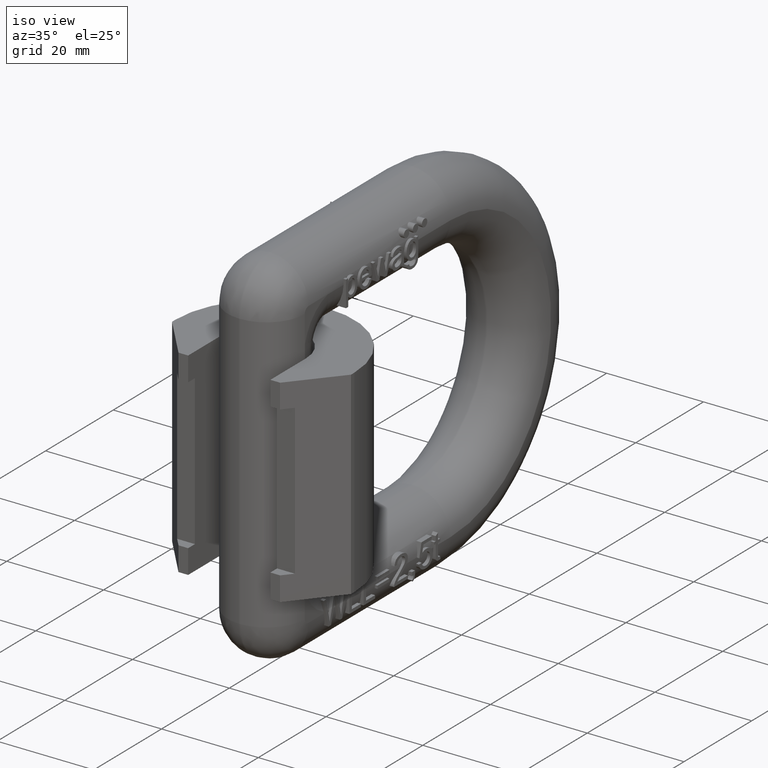
[diagram: clean part render]
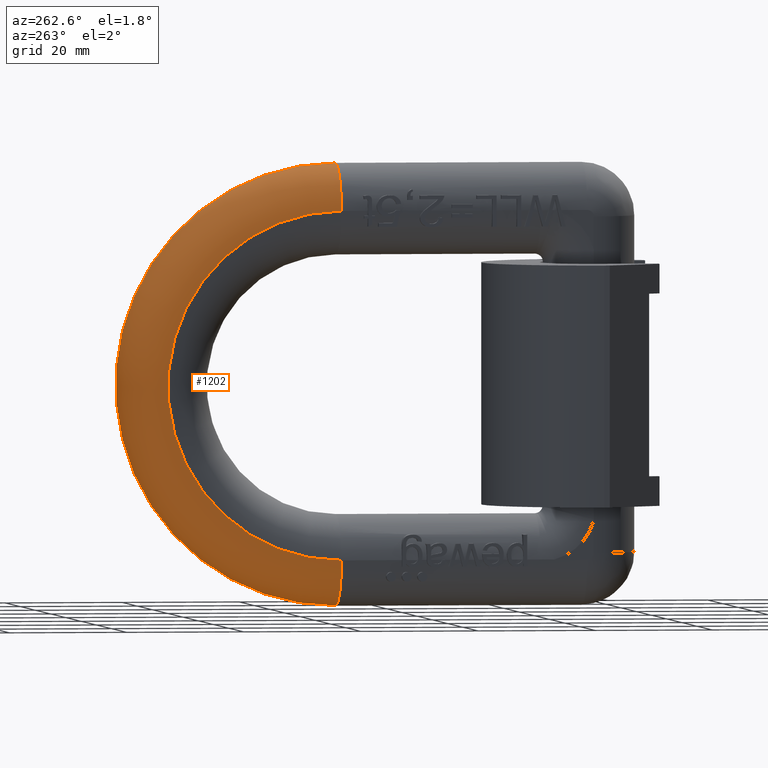
[diagram: tour spotlight — one face highlighted and labeled with its STEP entity id]
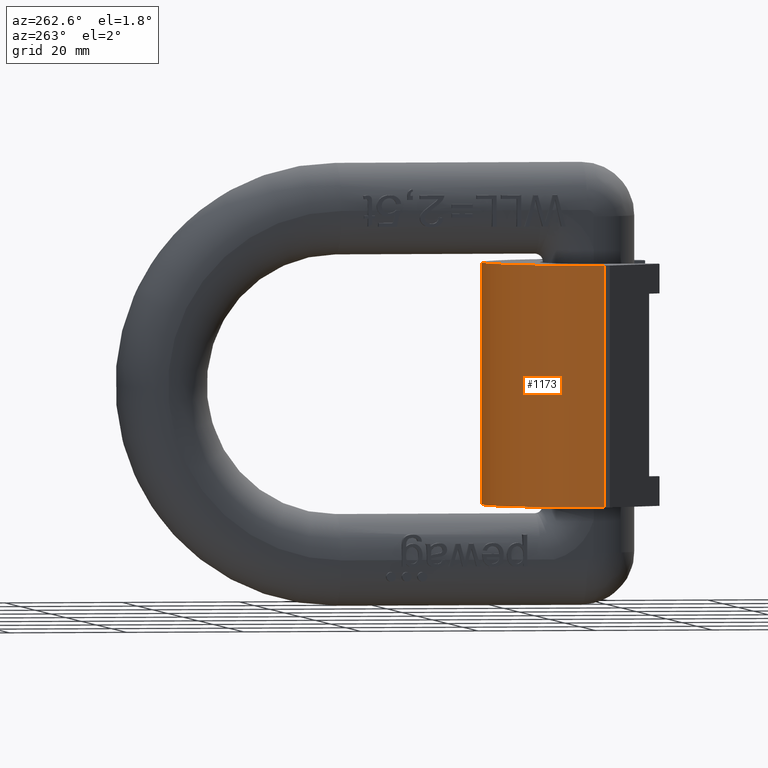
[diagram: tour spotlight — one face highlighted and labeled with its STEP entity id]
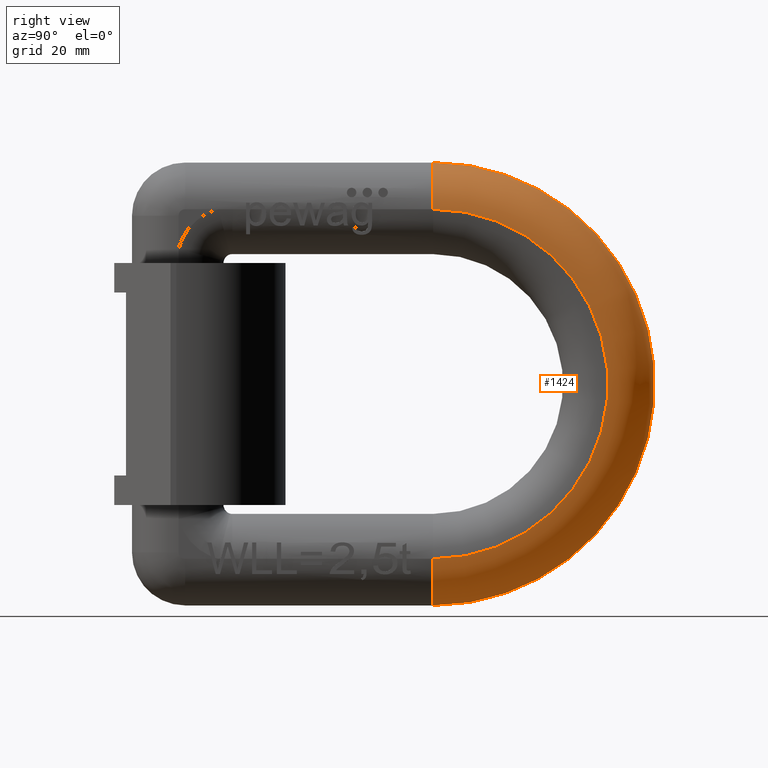
[diagram: tour spotlight — one face highlighted and labeled with its STEP entity id]
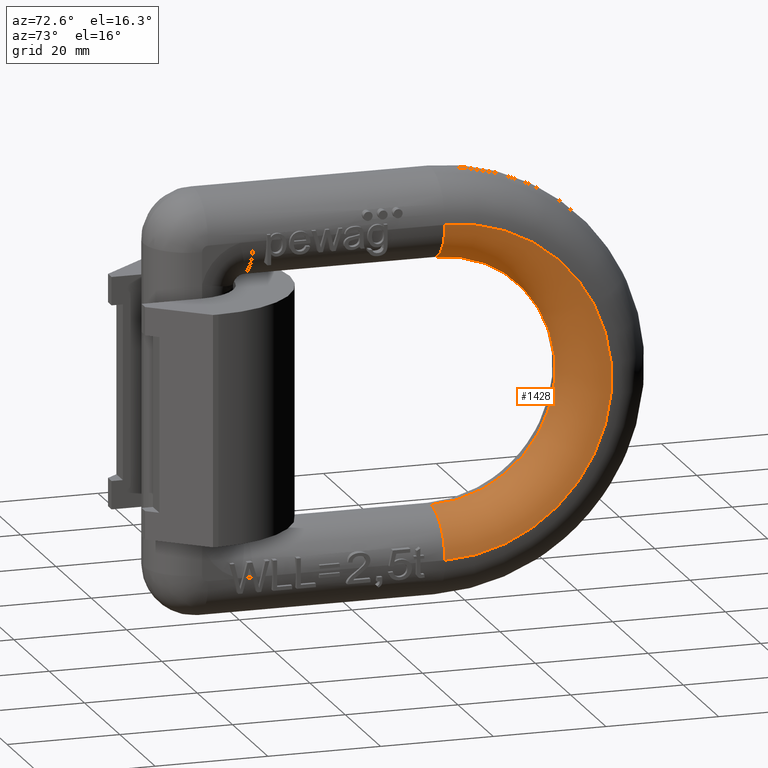
[diagram: tour spotlight — one face highlighted and labeled with its STEP entity id]
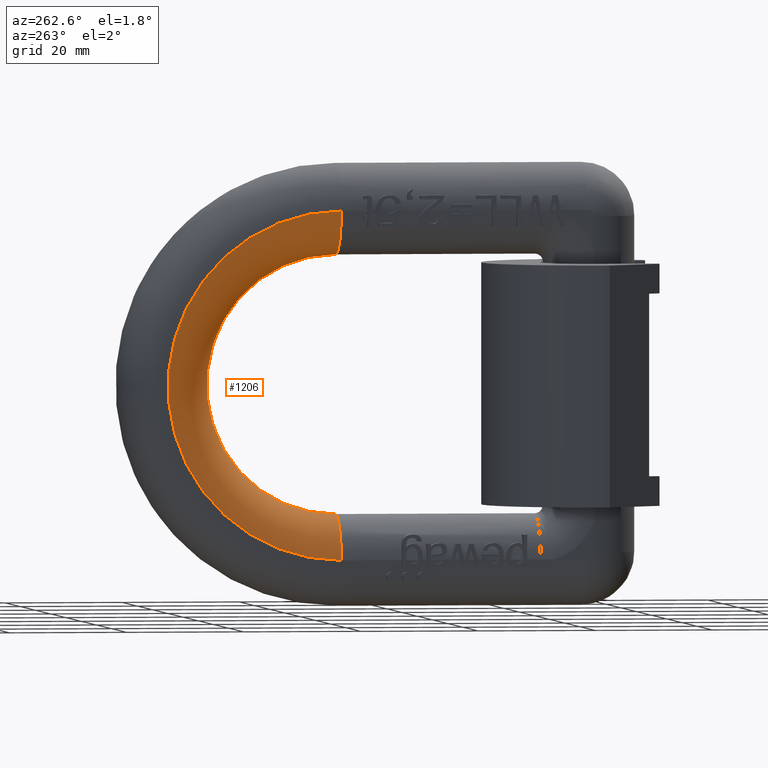
[diagram: tour spotlight — one face highlighted and labeled with its STEP entity id]
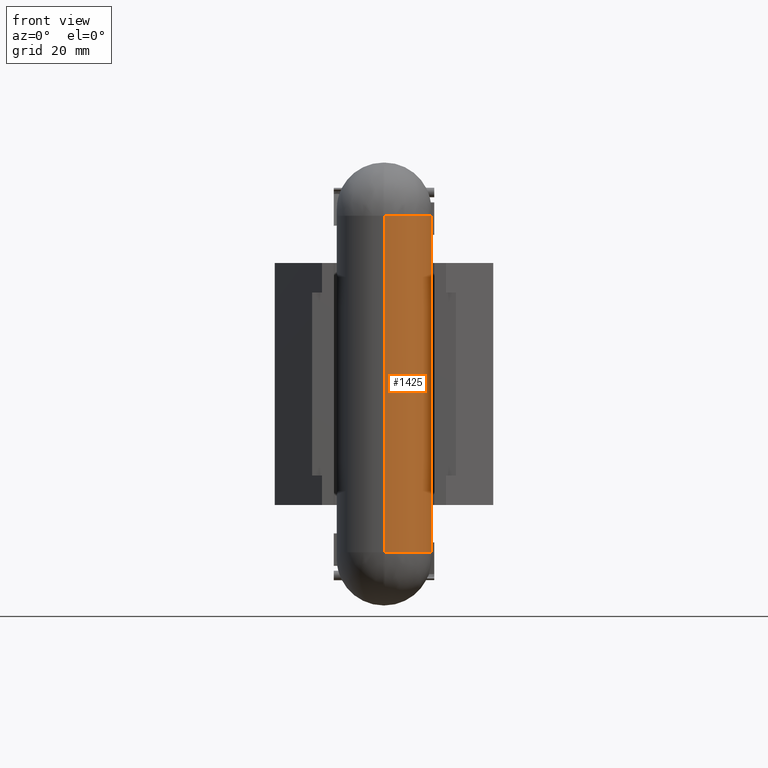
[diagram: tour spotlight — one face highlighted and labeled with its STEP entity id]
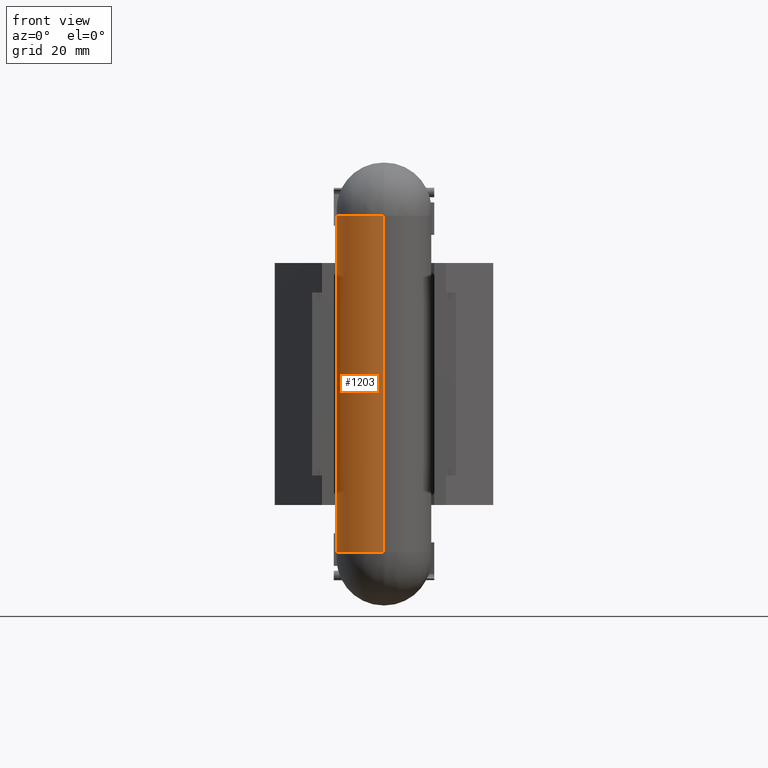
[diagram: tour spotlight — one face highlighted and labeled with its STEP entity id]
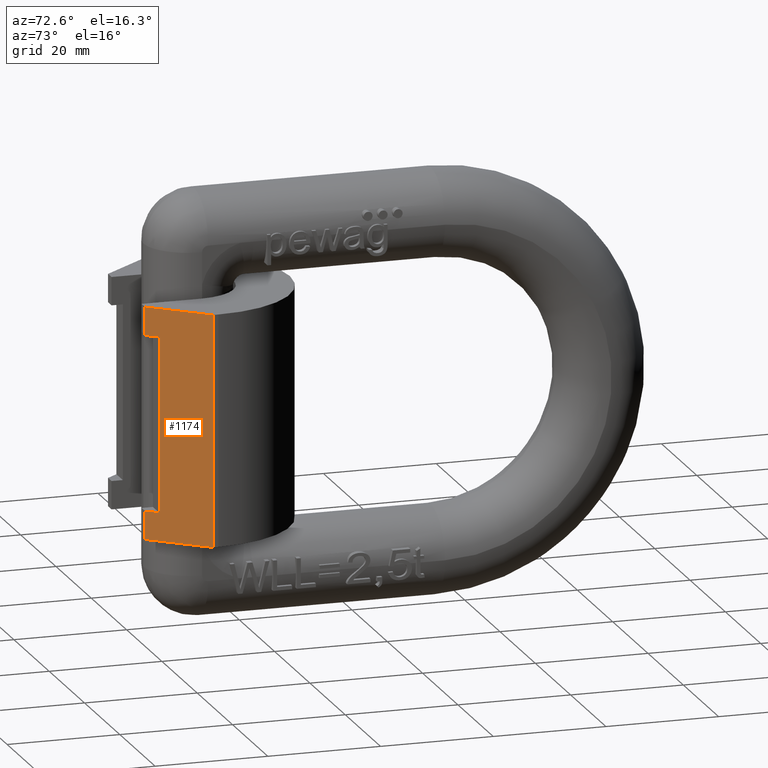
[diagram: tour spotlight — one face highlighted and labeled with its STEP entity id]
A machine part: a face-by-face anatomy tour. The part has 476 B-rep faces; the first image is the clean iso view, then the 8 largest visible faces are spotlighted one at a time (largest first), each with its STEP entity span.

Face 1 — auxiliary view, entity #1202. In plain terms, the highlighted toroidal blend (fillet) surface has major radius 29.6 mm and minor (blend) radius 7.9 mm.
Definition (entity closure, byte-faithful):
#191=TOROIDAL_SURFACE('',#9133,29.6,7.9);
#1202=ADVANCED_FACE('',(#1909),#191,.T.);
#1909=FACE_OUTER_BOUND('',#2369,.T.);
#2369=EDGE_LOOP('',(#3253,#3254,#3255,#3256));
#2833=CIRCLE('',#9074,37.5);
#2845=CIRCLE('',#9100,7.9);
#2855=CIRCLE('',#9131,29.6);
#2856=CIRCLE('',#9132,7.9);
#3253=ORIENTED_EDGE('',*,*,#6609,.T.);
#3254=ORIENTED_EDGE('',*,*,#6680,.F.);
#3255=ORIENTED_EDGE('',*,*,#6681,.F.);
#3256=ORIENTED_EDGE('',*,*,#6540,.F.);
#5641=VERTEX_POINT('',#11391);
#5643=VERTEX_POINT('',#11397);
#5705=VERTEX_POINT('',#11812);
#5761=VERTEX_POINT('',#12436);
#6540=EDGE_CURVE('',#5643,#5641,#2833,.T.);
#6609=EDGE_CURVE('',#5643,#5705,#2845,.T.);
#6680=EDGE_CURVE('',#5761,#5705,#2855,.T.);
#6681=EDGE_CURVE('',#5641,#5761,#2856,.T.);
#9074=AXIS2_PLACEMENT_3D('',#11398,#9670,#9671);
#9100=AXIS2_PLACEMENT_3D('',#11813,#9744,#9745);
#9131=AXIS2_PLACEMENT_3D('',#12435,#9818,#9819);
#9132=AXIS2_PLACEMENT_3D('',#12437,#9820,#9821);
#9133=AXIS2_PLACEMENT_3D('',#12438,#9822,#9823);
#9670=DIRECTION('',(1.,0.,0.));
#9671=DIRECTION('',(0.,0.,1.));
#9744=DIRECTION('',(0.,1.,0.));
#9745=DIRECTION('',(0.,0.,1.));
#9818=DIRECTION('',(-1.,0.,0.));
#9819=DIRECTION('',(0.,0.,1.));
#9820=DIRECTION('',(0.,-1.,0.));
#9821=DIRECTION('',(0.,0.,-1.));
#9822=DIRECTION('',(-1.,0.,0.));
#9823=DIRECTION('',(0.,0.,1.));
#11391=CARTESIAN_POINT('',(-0.0999999999999994,54.,37.5));
#11397=CARTESIAN_POINT('',(-0.0999999999999994,54.,-37.5));
#11398=CARTESIAN_POINT('',(-0.0999999999999994,54.,0.));
#11812=CARTESIAN_POINT('',(-8.,54.,-29.6));
#11813=CARTESIAN_POINT('',(-0.0999999999999994,54.,-29.6));
#12435=CARTESIAN_POINT('',(-8.,54.,0.));
#12436=CARTESIAN_POINT('',(-8.,54.,29.6));
#12437=CARTESIAN_POINT('',(-0.0999999999999994,54.,29.6));
#12438=CARTESIAN_POINT('',(-0.0999999999999994,54.,0.));

Face 2 — auxiliary view, entity #1173. In plain terms, the highlighted cylindrical surface (partial cylindrical patch) has radius 18.5 mm, axis along (0, 0, -1).
Definition (entity closure, byte-faithful):
#1103=CYLINDRICAL_SURFACE('',#9056,18.5);
#1173=ADVANCED_FACE('',(#1881),#1103,.T.);
#1881=FACE_OUTER_BOUND('',#2337,.T.);
#2337=EDGE_LOOP('',(#3030,#3031,#3032,#3033));
#2823=CIRCLE('',#9036,18.5);
#2824=CIRCLE('',#9038,18.5);
#3030=ORIENTED_EDGE('',*,*,#6467,.T.);
#3031=ORIENTED_EDGE('',*,*,#6475,.F.);
#3032=ORIENTED_EDGE('',*,*,#6462,.F.);
#3033=ORIENTED_EDGE('',*,*,#6503,.T.);
#5590=VERTEX_POINT('',#11220);
#5591=VERTEX_POINT('',#11222);
#5595=VERTEX_POINT('',#11231);
#5596=VERTEX_POINT('',#11233);
#6462=EDGE_CURVE('',#5590,#5591,#2823,.T.);
#6467=EDGE_CURVE('',#5596,#5595,#2824,.T.);
#6475=EDGE_CURVE('',#5591,#5595,#7791,.T.);
#6503=EDGE_CURVE('',#5590,#5596,#7819,.T.);
#7791=LINE('',#11247,#8337);
#7819=LINE('',#11301,#8365);
#8337=VECTOR('',#9550,1.);
#8365=VECTOR('',#9598,1.);
#9036=AXIS2_PLACEMENT_3D('',#11221,#9530,#9531);
#9038=AXIS2_PLACEMENT_3D('',#11232,#9538,#9539);
#9056=AXIS2_PLACEMENT_3D('',#11311,#9613,#9614);
#9530=DIRECTION('',(0.,0.,1.));
#9531=DIRECTION('',(1.,0.,0.));
#9538=DIRECTION('',(0.,0.,1.));
#9539=DIRECTION('',(1.,0.,0.));
#9550=DIRECTION('',(0.,0.,-1.));
#9598=DIRECTION('',(0.,0.,-1.));
#9613=DIRECTION('',(0.,0.,-1.));
#9614=DIRECTION('',(-1.,0.,0.));
#11220=CARTESIAN_POINT('',(18.5,10.5,20.5));
#11221=CARTESIAN_POINT('',(0.,10.5,20.5));
#11222=CARTESIAN_POINT('',(-18.5,10.5,20.5));
#11231=CARTESIAN_POINT('',(-18.5,10.5,-20.5));
#11232=CARTESIAN_POINT('',(0.,10.5,-20.5));
#11233=CARTESIAN_POINT('',(18.5,10.5,-20.5));
#11247=CARTESIAN_POINT('',(-18.5,10.5,20.5));
#11301=CARTESIAN_POINT('',(18.5,10.5,20.5));
#11311=CARTESIAN_POINT('',(0.,10.5,20.5));

Face 3 — right view, entity #1424. In plain terms, the highlighted toroidal blend (fillet) surface has major radius 29.6 mm and minor (blend) radius 7.9 mm.
Definition (entity closure, byte-faithful):
#195=TOROIDAL_SURFACE('',#9351,29.6,7.9);
#1424=ADVANCED_FACE('',(#2121),#195,.T.);
#2121=FACE_OUTER_BOUND('',#2604,.T.);
#2604=EDGE_LOOP('',(#4491,#4492,#4493,#4494));
#2832=CIRCLE('',#9073,37.5);
#2897=CIRCLE('',#9318,7.9);
#2907=CIRCLE('',#9349,29.6);
#2908=CIRCLE('',#9350,7.9);
#4491=ORIENTED_EDGE('',*,*,#7220,.T.);
#4492=ORIENTED_EDGE('',*,*,#7291,.F.);
#4493=ORIENTED_EDGE('',*,*,#7292,.F.);
#4494=ORIENTED_EDGE('',*,*,#6538,.F.);
#5640=VERTEX_POINT('',#11389);
#5642=VERTEX_POINT('',#11395);
#6107=VERTEX_POINT('',#15470);
#6163=VERTEX_POINT('',#16094);
#6538=EDGE_CURVE('',#5640,#5642,#2832,.T.);
#7220=EDGE_CURVE('',#5640,#6107,#2897,.T.);
#7291=EDGE_CURVE('',#6163,#6107,#2907,.T.);
#7292=EDGE_CURVE('',#5642,#6163,#2908,.T.);
#9073=AXIS2_PLACEMENT_3D('',#11394,#9667,#9668);
#9318=AXIS2_PLACEMENT_3D('',#15471,#10500,#10501);
#9349=AXIS2_PLACEMENT_3D('',#16093,#10574,#10575);
#9350=AXIS2_PLACEMENT_3D('',#16095,#10576,#10577);
#9351=AXIS2_PLACEMENT_3D('',#16096,#10578,#10579);
#9667=DIRECTION('',(-1.,0.,-2.34291072916505E-15));
#9668=DIRECTION('',(2.34296089474118E-15,0.,-1.));
#10500=DIRECTION('',(0.,1.,0.));
#10501=DIRECTION('',(2.34338634116329E-15,0.,-1.));
#10574=DIRECTION('',(1.,0.,2.34291072916505E-15));
#10575=DIRECTION('',(2.34422091348217E-15,0.,-1.));
#10576=DIRECTION('',(0.,-1.,0.));
#10577=DIRECTION('',(-2.34338634116329E-15,0.,1.));
#10578=DIRECTION('',(1.,0.,2.34291072916505E-15));
#10579=DIRECTION('',(2.34296089474118E-15,0.,-1.));
#11389=CARTESIAN_POINT('',(0.0999999999999115,54.,37.5));
#11394=CARTESIAN_POINT('',(0.0999999999999994,54.,2.34291072916503E-16));
#11395=CARTESIAN_POINT('',(0.100000000000087,54.,-37.5));
#15470=CARTESIAN_POINT('',(7.99999999999993,54.,29.6));
#15471=CARTESIAN_POINT('',(0.09999999999993,54.,29.6));
#16093=CARTESIAN_POINT('',(8.,54.,1.87432858333204E-14));
#16094=CARTESIAN_POINT('',(8.00000000000007,54.,-29.6));
#16095=CARTESIAN_POINT('',(0.100000000000069,54.,-29.6));
#16096=CARTESIAN_POINT('',(0.0999999999999994,54.,2.34291072916503E-16));

Face 4 — auxiliary view, entity #1428. In plain terms, the highlighted toroidal blend (fillet) surface has major radius 29.9 mm and minor (blend) radius 7.9 mm.
Definition (entity closure, byte-faithful):
#196=TOROIDAL_SURFACE('',#9376,29.9,7.9);
#1428=ADVANCED_FACE('',(#2124),#196,.T.);
#2124=FACE_OUTER_BOUND('',#2610,.T.);
#2610=EDGE_LOOP('',(#4570,#4571,#4572,#4573));
#2828=CIRCLE('',#9064,22.);
#2901=CIRCLE('',#9329,7.9);
#2907=CIRCLE('',#9349,29.6);
#2921=CIRCLE('',#9375,7.9);
#4570=ORIENTED_EDGE('',*,*,#7238,.F.);
#4571=ORIENTED_EDGE('',*,*,#6522,.F.);
#4572=ORIENTED_EDGE('',*,*,#7356,.F.);
#4573=ORIENTED_EDGE('',*,*,#7291,.T.);
#5628=VERTEX_POINT('',#11356);
#5630=VERTEX_POINT('',#11362);
#6107=VERTEX_POINT('',#15470);
#6163=VERTEX_POINT('',#16094);
#6522=EDGE_CURVE('',#5628,#5630,#2828,.T.);
#7238=EDGE_CURVE('',#5630,#6107,#2901,.T.);
#7291=EDGE_CURVE('',#6163,#6107,#2907,.T.);
#7356=EDGE_CURVE('',#6163,#5628,#2921,.T.);
#9064=AXIS2_PLACEMENT_3D('',#11361,#9637,#9638);
#9329=AXIS2_PLACEMENT_3D('',#15671,#10526,#10527);
#9349=AXIS2_PLACEMENT_3D('',#16093,#10574,#10575);
#9375=AXIS2_PLACEMENT_3D('',#16452,#10648,#10649);
#9376=AXIS2_PLACEMENT_3D('',#16453,#10650,#10651);
#9637=DIRECTION('',(1.,0.,2.34291072916505E-15));
#9638=DIRECTION('',(2.34273912611499E-15,0.,-1.));
#10526=DIRECTION('',(-3.3378797612108E-17,-1.,-8.78341000494586E-16));
#10527=DIRECTION('',(-2.34338634116329E-15,-8.78341000494586E-16,1.));
#10574=DIRECTION('',(1.,0.,2.34291072916505E-15));
#10575=DIRECTION('',(2.34422091348217E-15,0.,-1.));
#10648=DIRECTION('',(0.,-1.,0.));
#10649=DIRECTION('',(-2.34338634116329E-15,0.,1.));
#10650=DIRECTION('',(1.,0.,2.34291072916505E-15));
#10651=DIRECTION('',(2.34300965515634E-15,0.,-1.));
#11356=CARTESIAN_POINT('',(0.10569825760383,54.,-22.));
#11361=CARTESIAN_POINT('',(0.10569825760378,54.,2.47641581793947E-16));
#11362=CARTESIAN_POINT('',(0.105698257603727,54.,22.));
#15470=CARTESIAN_POINT('',(7.99999999999993,54.,29.6));
#15671=CARTESIAN_POINT('',(0.105698257603708,54.,29.9));
#16093=CARTESIAN_POINT('',(8.,54.,1.87432858333204E-14));
#16094=CARTESIAN_POINT('',(8.00000000000007,54.,-29.6));
#16452=CARTESIAN_POINT('',(0.105698257603848,54.,-29.9));
#16453=CARTESIAN_POINT('',(0.10569825760378,54.,2.47641581793947E-16));

Face 5 — auxiliary view, entity #1206. In plain terms, the highlighted toroidal blend (fillet) surface has major radius 29.9 mm and minor (blend) radius 7.9 mm.
Definition (entity closure, byte-faithful):
#192=TOROIDAL_SURFACE('',#9158,29.9,7.9);
#1206=ADVANCED_FACE('',(#1912),#192,.T.);
#1912=FACE_OUTER_BOUND('',#2375,.T.);
#2375=EDGE_LOOP('',(#3332,#3333,#3334,#3335));
#2829=CIRCLE('',#9065,22.);
#2849=CIRCLE('',#9111,7.9);
#2855=CIRCLE('',#9131,29.6);
#2869=CIRCLE('',#9157,7.9);
#3332=ORIENTED_EDGE('',*,*,#6627,.F.);
#3333=ORIENTED_EDGE('',*,*,#6524,.F.);
#3334=ORIENTED_EDGE('',*,*,#6745,.F.);
#3335=ORIENTED_EDGE('',*,*,#6680,.T.);
#5629=VERTEX_POINT('',#11358);
#5631=VERTEX_POINT('',#11364);
#5705=VERTEX_POINT('',#11812);
#5761=VERTEX_POINT('',#12436);
#6524=EDGE_CURVE('',#5631,#5629,#2829,.T.);
#6627=EDGE_CURVE('',#5629,#5705,#2849,.T.);
#6680=EDGE_CURVE('',#5761,#5705,#2855,.T.);
#6745=EDGE_CURVE('',#5761,#5631,#2869,.T.);
#9065=AXIS2_PLACEMENT_3D('',#11365,#9640,#9641);
#9111=AXIS2_PLACEMENT_3D('',#12013,#9770,#9771);
#9131=AXIS2_PLACEMENT_3D('',#12435,#9818,#9819);
#9157=AXIS2_PLACEMENT_3D('',#12794,#9892,#9893);
#9158=AXIS2_PLACEMENT_3D('',#12795,#9894,#9895);
#9640=DIRECTION('',(-1.,0.,0.));
#9641=DIRECTION('',(0.,0.,1.));
#9770=DIRECTION('',(3.337879761211E-17,-1.,8.78341000494586E-16));
#9771=DIRECTION('',(0.,-8.78341000494586E-16,-1.));
#9818=DIRECTION('',(-1.,0.,0.));
#9819=DIRECTION('',(0.,0.,1.));
#9892=DIRECTION('',(0.,-1.,0.));
#9893=DIRECTION('',(0.,0.,-1.));
#9894=DIRECTION('',(-1.,0.,0.));
#9895=DIRECTION('',(0.,0.,1.));
#11358=CARTESIAN_POINT('',(-0.105698257603778,54.,-22.));
#11364=CARTESIAN_POINT('',(-0.105698257603778,54.,22.));
#11365=CARTESIAN_POINT('',(-0.10569825760378,54.,0.));
#11812=CARTESIAN_POINT('',(-8.,54.,-29.6));
#12013=CARTESIAN_POINT('',(-0.105698257603778,54.,-29.9));
#12435=CARTESIAN_POINT('',(-8.,54.,0.));
#12436=CARTESIAN_POINT('',(-8.,54.,29.6));
#12794=CARTESIAN_POINT('',(-0.105698257603778,54.,29.9));
#12795=CARTESIAN_POINT('',(-0.10569825760378,54.,0.));

Face 6 — front view, entity #1425. In plain terms, the highlighted cylindrical surface (partial cylindrical patch) has radius 7.9 mm, axis along (-0, 0, 1).
Definition (entity closure, byte-faithful):
#1142=CYLINDRICAL_SURFACE('',#9353,7.9);
#1425=ADVANCED_FACE('',(#2122),#1142,.T.);
#2122=FACE_OUTER_BOUND('',#2605,.T.);
#2605=EDGE_LOOP('',(#4495,#4496,#4497,#4498,#4499,#4500,#4501,#4502));
#2906=CIRCLE('',#9348,7.9);
#2909=CIRCLE('',#9352,7.9);
#4495=ORIENTED_EDGE('',*,*,#7290,.T.);
#4496=ORIENTED_EDGE('',*,*,#6529,.F.);
#4497=ORIENTED_EDGE('',*,*,#7293,.F.);
#4498=ORIENTED_EDGE('',*,*,#7165,.F.);
#4499=ORIENTED_EDGE('',*,*,#7294,.F.);
#4500=ORIENTED_EDGE('',*,*,#7295,.F.);
#4501=ORIENTED_EDGE('',*,*,#7296,.F.);
#4502=ORIENTED_EDGE('',*,*,#7285,.F.);
#5635=VERTEX_POINT('',#11375);
#5636=VERTEX_POINT('',#11377);
#6054=VERTEX_POINT('',#15100);
#6055=VERTEX_POINT('',#15102);
#6160=VERTEX_POINT('',#16067);
#6161=VERTEX_POINT('',#16068);
#6164=VERTEX_POINT('',#16099);
#6165=VERTEX_POINT('',#16101);
#6529=EDGE_CURVE('',#5635,#5636,#7837,.T.);
#7165=EDGE_CURVE('',#6054,#6055,#8085,.T.);
#7285=EDGE_CURVE('',#6160,#6161,#8113,.T.);
#7290=EDGE_CURVE('',#6160,#5636,#2906,.T.);
#7293=EDGE_CURVE('',#6055,#5635,#2909,.T.);
#7294=EDGE_CURVE('',#6164,#6054,#8115,.T.);
#7295=EDGE_CURVE('',#6165,#6164,#8116,.T.);
#7296=EDGE_CURVE('',#6161,#6165,#8117,.T.);
#7837=LINE('',#11376,#8383);
#8085=LINE('',#15101,#8715);
#8113=LINE('',#16066,#8743);
#8115=LINE('',#16098,#8745);
#8116=LINE('',#16100,#8746);
#8117=LINE('',#16102,#8747);
#8383=VECTOR('',#9650,1.);
#8715=VECTOR('',#10450,1.);
#8743=VECTOR('',#10560,1.);
#8745=VECTOR('',#10582,1.);
#8746=VECTOR('',#10583,1.);
#8747=VECTOR('',#10584,1.);
#9348=AXIS2_PLACEMENT_3D('',#16076,#10572,#10573);
#9352=AXIS2_PLACEMENT_3D('',#16097,#10580,#10581);
#9353=AXIS2_PLACEMENT_3D('',#16103,#10585,#10586);
#9650=DIRECTION('',(-2.34291072916505E-15,0.,1.));
#10450=DIRECTION('',(2.34291072916505E-15,0.,-1.));
#10560=DIRECTION('',(2.34291072916505E-15,0.,-1.));
#10572=DIRECTION('',(2.34291072916505E-15,0.,-1.));
#10573=DIRECTION('',(-1.,0.,-2.19585250123646E-15));
#10580=DIRECTION('',(2.34291072916505E-15,4.39170500247293E-16,-1.));
#10581=DIRECTION('',(0.,-1.,-4.39170500247293E-16));
#10582=DIRECTION('',(2.34291072916505E-15,0.,-1.));
#10583=DIRECTION('',(2.34291072916505E-15,0.,-1.));
#10584=DIRECTION('',(2.34291072916505E-15,0.,-1.));
#10585=DIRECTION('',(-2.34291072916505E-15,0.,1.));
#10586=DIRECTION('',(1.,0.,2.19585250123646E-15));
#11375=CARTESIAN_POINT('',(0.100000000000066,3.,-28.5));
#11376=CARTESIAN_POINT('',(0.0999999999999326,3.,28.5));
#11377=CARTESIAN_POINT('',(0.0999999999999326,3.,28.5));
#15100=CARTESIAN_POINT('',(8.00000000000005,10.9,-22.8558437978779));
#15101=CARTESIAN_POINT('',(8.00000000000007,10.9,-28.5));
#15102=CARTESIAN_POINT('',(8.00000000000007,10.9,-28.5));
#16066=CARTESIAN_POINT('',(8.00000000000007,10.9,-28.5));
#16067=CARTESIAN_POINT('',(7.99999999999993,10.9,28.5));
#16068=CARTESIAN_POINT('',(7.99999999999995,10.9,22.855843797878));
#16076=CARTESIAN_POINT('',(0.0999999999999326,10.9,28.5));
#16097=CARTESIAN_POINT('',(0.100000000000066,10.9,-28.5));
#16098=CARTESIAN_POINT('',(8.00000000000007,10.9,-28.5));
#16099=CARTESIAN_POINT('',(8.00000000000005,10.9,-20.5));
#16100=CARTESIAN_POINT('',(8.00000000000007,10.9,-28.5));
#16101=CARTESIAN_POINT('',(7.99999999999995,10.9,20.5));
#16102=CARTESIAN_POINT('',(8.00000000000007,10.9,-28.5));
#16103=CARTESIAN_POINT('',(0.100000000000066,10.9,-28.5));

Face 7 — front view, entity #1203. In plain terms, the highlighted cylindrical surface (partial cylindrical patch) has radius 7.9 mm, axis along (0, 0, -1).
Definition (entity closure, byte-faithful):
#1119=CYLINDRICAL_SURFACE('',#9135,7.9);
#1203=ADVANCED_FACE('',(#1910),#1119,.T.);
#1910=FACE_OUTER_BOUND('',#2370,.T.);
#2370=EDGE_LOOP('',(#3257,#3258,#3259,#3260,#3261,#3262,#3263,#3264));
#2854=CIRCLE('',#9130,7.9);
#2857=CIRCLE('',#9134,7.9);
#3257=ORIENTED_EDGE('',*,*,#6679,.T.);
#3258=ORIENTED_EDGE('',*,*,#6531,.F.);
#3259=ORIENTED_EDGE('',*,*,#6682,.F.);
#3260=ORIENTED_EDGE('',*,*,#6554,.F.);
#3261=ORIENTED_EDGE('',*,*,#6683,.F.);
#3262=ORIENTED_EDGE('',*,*,#6684,.F.);
#3263=ORIENTED_EDGE('',*,*,#6685,.F.);
#3264=ORIENTED_EDGE('',*,*,#6674,.F.);
#5634=VERTEX_POINT('',#11374);
#5637=VERTEX_POINT('',#11379);
#5652=VERTEX_POINT('',#11442);
#5653=VERTEX_POINT('',#11444);
#5758=VERTEX_POINT('',#12409);
#5759=VERTEX_POINT('',#12410);
#5762=VERTEX_POINT('',#12441);
#5763=VERTEX_POINT('',#12443);
#6531=EDGE_CURVE('',#5637,#5634,#7839,.T.);
#6554=EDGE_CURVE('',#5652,#5653,#7849,.T.);
#6674=EDGE_CURVE('',#5758,#5759,#7877,.T.);
#6679=EDGE_CURVE('',#5758,#5634,#2854,.T.);
#6682=EDGE_CURVE('',#5653,#5637,#2857,.T.);
#6683=EDGE_CURVE('',#5762,#5652,#7879,.T.);
#6684=EDGE_CURVE('',#5763,#5762,#7880,.T.);
#6685=EDGE_CURVE('',#5759,#5763,#7881,.T.);
#7839=LINE('',#11380,#8385);
#7849=LINE('',#11443,#8395);
#7877=LINE('',#12408,#8423);
#7879=LINE('',#12440,#8425);
#7880=LINE('',#12442,#8426);
#7881=LINE('',#12444,#8427);
#8385=VECTOR('',#9652,1.);
#8395=VECTOR('',#9694,1.);
#8423=VECTOR('',#9804,1.);
#8425=VECTOR('',#9826,1.);
#8426=VECTOR('',#9827,1.);
#8427=VECTOR('',#9828,1.);
#9130=AXIS2_PLACEMENT_3D('',#12418,#9816,#9817);
#9134=AXIS2_PLACEMENT_3D('',#12439,#9824,#9825);
#9135=AXIS2_PLACEMENT_3D('',#12445,#9829,#9830);
#9652=DIRECTION('',(0.,0.,-1.));
#9694=DIRECTION('',(0.,0.,1.));
#9804=DIRECTION('',(0.,0.,1.));
#9816=DIRECTION('',(0.,0.,1.));
#9817=DIRECTION('',(1.,0.,0.));
#9824=DIRECTION('',(0.,4.39170500247293E-16,1.));
#9825=DIRECTION('',(0.,-1.,4.39170500247293E-16));
#9826=DIRECTION('',(0.,0.,1.));
#9827=DIRECTION('',(0.,0.,1.));
#9828=DIRECTION('',(0.,0.,1.));
#9829=DIRECTION('',(0.,0.,-1.));
#9830=DIRECTION('',(-1.,0.,0.));
#11374=CARTESIAN_POINT('',(-0.0999999999999994,3.,-28.5));
#11379=CARTESIAN_POINT('',(-0.0999999999999994,3.,28.5));
#11380=CARTESIAN_POINT('',(-0.0999999999999994,3.,-28.5));
#11442=CARTESIAN_POINT('',(-8.,10.9,22.8558437978779));
#11443=CARTESIAN_POINT('',(-8.,10.9,28.5));
#11444=CARTESIAN_POINT('',(-8.,10.9,28.5));
#12408=CARTESIAN_POINT('',(-8.,10.9,28.5));
#12409=CARTESIAN_POINT('',(-8.,10.9,-28.5));
#12410=CARTESIAN_POINT('',(-8.,10.9,-22.8558437978779));
#12418=CARTESIAN_POINT('',(-0.0999999999999994,10.9,-28.5));
#12439=CARTESIAN_POINT('',(-0.0999999999999994,10.9,28.5));
#12440=CARTESIAN_POINT('',(-8.,10.9,28.5));
#12441=CARTESIAN_POINT('',(-8.,10.9,20.5));
#12442=CARTESIAN_POINT('',(-8.,10.9,28.5));
#12443=CARTESIAN_POINT('',(-8.,10.9,-20.5));
#12444=CARTESIAN_POINT('',(-8.,10.9,28.5));
#12445=CARTESIAN_POINT('',(-0.0999999999999994,10.9,28.5));

Face 8 — auxiliary view, entity #1174. In plain terms, the highlighted planar face has unit normal (0.766, -0.6428, 0).
Definition (entity closure, byte-faithful):
#1174=ADVANCED_FACE('',(#1882),#1648,.T.);
#1648=PLANE('',#9057);
#1882=FACE_OUTER_BOUND('',#2338,.T.);
#2338=EDGE_LOOP('',(#3034,#3035,#3036,#3037,#3038,#3039,#3040,#3041));
#3034=ORIENTED_EDGE('',*,*,#6460,.T.);
#3035=ORIENTED_EDGE('',*,*,#6489,.T.);
#3036=ORIENTED_EDGE('',*,*,#6495,.T.);
#3037=ORIENTED_EDGE('',*,*,#6498,.F.);
#3038=ORIENTED_EDGE('',*,*,#6492,.F.);
#3039=ORIENTED_EDGE('',*,*,#6486,.T.);
#3040=ORIENTED_EDGE('',*,*,#6469,.F.);
#3041=ORIENTED_EDGE('',*,*,#6502,.F.);
#5588=VERTEX_POINT('',#11216);
#5589=VERTEX_POINT('',#11218);
#5597=VERTEX_POINT('',#11235);
#5598=VERTEX_POINT('',#11237);
#5610=VERTEX_POINT('',#11271);
#5612=VERTEX_POINT('',#11277);
#5614=VERTEX_POINT('',#11283);
#5616=VERTEX_POINT('',#11289);
#6460=EDGE_CURVE('',#5589,#5588,#7779,.T.);
#6469=EDGE_CURVE('',#5597,#5598,#7786,.T.);
#6486=EDGE_CURVE('',#5610,#5598,#7802,.T.);
#6489=EDGE_CURVE('',#5588,#5612,#7805,.T.);
#6492=EDGE_CURVE('',#5610,#5614,#7808,.T.);
#6495=EDGE_CURVE('',#5612,#5616,#7811,.T.);
#6498=EDGE_CURVE('',#5614,#5616,#7814,.T.);
#6502=EDGE_CURVE('',#5589,#5597,#7818,.T.);
#7779=LINE('',#11217,#8325);
#7786=LINE('',#11236,#8332);
#7802=LINE('',#11270,#8348);
#7805=LINE('',#11276,#8351);
#7808=LINE('',#11282,#8354);
#7811=LINE('',#11288,#8357);
#7814=LINE('',#11294,#8360);
#7818=LINE('',#11300,#8364);
#8325=VECTOR('',#9528,1.);
#8332=VECTOR('',#9541,1.);
#8348=VECTOR('',#9569,1.);
#8351=VECTOR('',#9574,1.);
#8354=VECTOR('',#9579,1.);
#8357=VECTOR('',#9584,1.);
#8360=VECTOR('',#9589,1.);
#8364=VECTOR('',#9597,1.);
#9057=AXIS2_PLACEMENT_3D('',#11312,#9615,#9616);
#9528=DIRECTION('',(-0.642787609686539,-0.766044443118978,0.));
#9541=DIRECTION('',(-0.642787609686539,-0.766044443118978,0.));
#9569=DIRECTION('',(0.,0.,-1.));
#9574=DIRECTION('',(0.,0.,-1.));
#9579=DIRECTION('',(0.642787609686539,0.766044443118978,0.));
#9584=DIRECTION('',(0.642787609686539,0.766044443118978,0.));
#9589=DIRECTION('',(0.,0.,1.));
#9597=DIRECTION('',(0.,0.,-1.));
#9615=DIRECTION('',(0.766044443118978,-0.642787609686539,0.));
#9616=DIRECTION('',(0.642787609686539,0.766044443118978,0.));
#11216=CARTESIAN_POINT('',(10.5,-8.88178419700125E-16,20.5));
#11217=CARTESIAN_POINT('',(11.3318936360655,0.991412229437293,20.5));
#11218=CARTESIAN_POINT('',(18.5,9.53402874075368,20.5));
#11235=CARTESIAN_POINT('',(18.5,9.53402874075368,-20.5));
#11236=CARTESIAN_POINT('',(11.3318936360655,0.991412229437293,-20.5));
#11237=CARTESIAN_POINT('',(10.5,-8.88178419700125E-16,-20.5));
#11270=CARTESIAN_POINT('',(10.5,-8.88178419700125E-16,22.5500275));
#11271=CARTESIAN_POINT('',(10.5,-8.88178419700125E-16,-15.5));
#11276=CARTESIAN_POINT('',(10.5,-8.88178419700125E-16,22.5500275));
#11277=CARTESIAN_POINT('',(10.5,-8.88178419700125E-16,15.5));
#11282=CARTESIAN_POINT('',(6.16165293275138,-5.17024070331409,-15.5));
#11283=CARTESIAN_POINT('',(12.1781992623546,2.,-15.5));
#11288=CARTESIAN_POINT('',(6.16165293275138,-5.17024070331409,15.5));
#11289=CARTESIAN_POINT('',(12.1781992623546,2.,15.5));
#11294=CARTESIAN_POINT('',(12.1781992623546,2.,15.5));
#11300=CARTESIAN_POINT('',(18.5,9.53402874075368,22.5500275));
#11312=CARTESIAN_POINT('',(18.5,9.53402874075368,22.5500275));